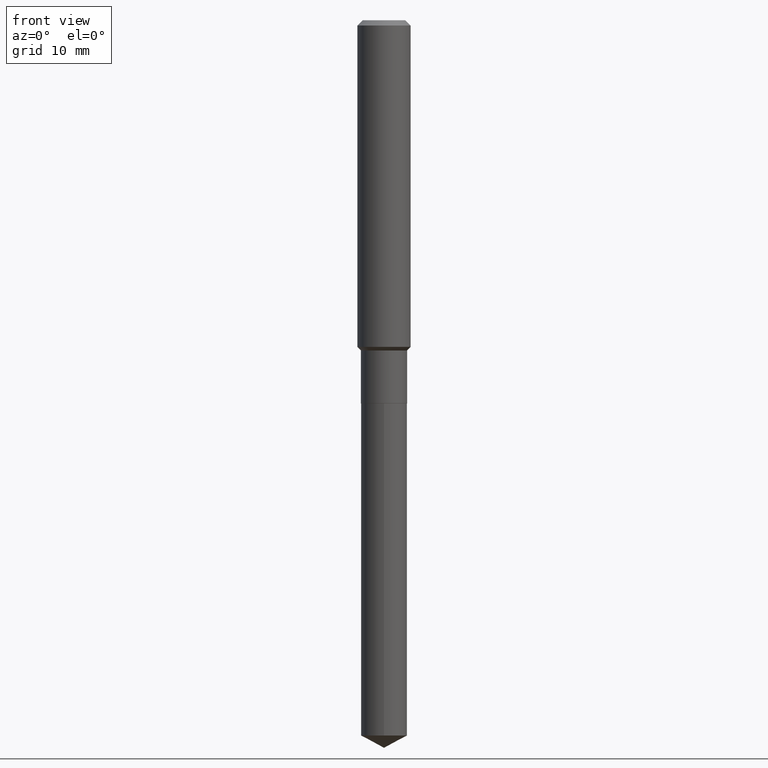
[diagram: clean part render]
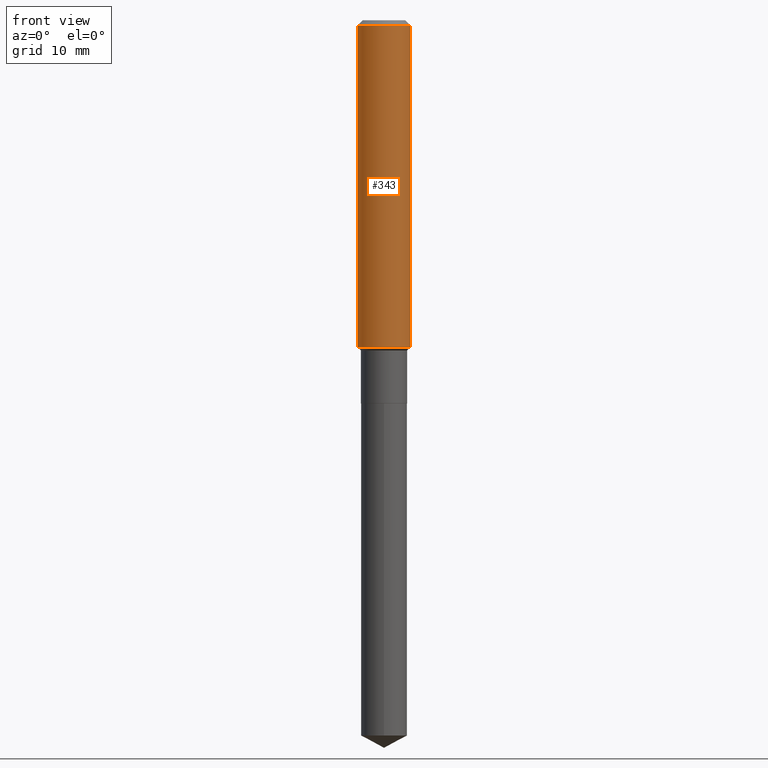
[diagram: same view with one face highlighted and labeled with its STEP entity id]
A machine part, front view. The second image highlights one B-rep face of the part: STEP entity #343.
In plain terms, the highlighted cylindrical surface (edge-blend (fillet) strip) has radius 2.9997 mm, axis along (-0, 0, 1).
Its self-contained STEP definition (entity closure, byte-faithful):
#9 = CARTESIAN_POINT ( 'NONE',  ( 0.1180999999999999966, -9.071566814582237199E-16, -0.02362000000000014088 ) ) ;
#20 = DIRECTION ( 'NONE',  ( 1.000000000000000000, -6.982962677686263555E-15, 0.000000000000000000 ) ) ;
#24 = AXIS2_PLACEMENT_3D ( 'NONE', #25, #388, #20 ) ;
#25 = CARTESIAN_POINT ( 'NONE',  ( 3.544829308005664880E-29, -5.061076774720080972E-15, -1.449549999999999894 ) ) ;
#31 = DIRECTION ( 'NONE',  ( -2.445468806185136597E-29, 3.491481338843145583E-15, 1.000000000000000000 ) ) ;
#50 = EDGE_CURVE ( 'NONE', #344, #430, #53, .T. ) ;
#53 = LINE ( 'NONE', #338, #85 ) ;
#69 = DIRECTION ( 'NONE',  ( 1.000000000000000000, -6.982962677686266711E-15, 4.876176775795936353E-29 ) ) ;
#85 = VECTOR ( 'NONE', #86, 39.37007874015748143 ) ;
#86 = DIRECTION ( 'NONE',  ( -2.445468806185136877E-29, 3.491481338843145188E-15, 1.000000000000000000 ) ) ;
#89 = ORIENTED_EDGE ( 'NONE', *, *, #50, .T. ) ;
#95 = VECTOR ( 'NONE', #348, 39.37007874015748143 ) ;
#109 = ORIENTED_EDGE ( 'NONE', *, *, #216, .T. ) ;
#112 = DIRECTION ( 'NONE',  ( 1.000000000000000000, -6.982962677686266711E-15, 0.000000000000000000 ) ) ;
#114 = CARTESIAN_POINT ( 'NONE',  ( 0.000000000000000000, 0.000000000000000000, 0.000000000000000000 ) ) ;
#120 = ORIENTED_EDGE ( 'NONE', *, *, #398, .F. ) ;
#148 = CARTESIAN_POINT ( 'NONE',  ( -0.1180999999999999966, -1.732621811039098637E-15, -0.02362000000000014088 ) ) ;
#171 = CARTESIAN_POINT ( 'NONE',  ( -0.1181000000000000799, 8.391509709326788873E-16, -5.809262341591047988E-30 ) ) ;
#209 = CIRCLE ( 'NONE', #24, 0.1181000000000001632 ) ;
#216 = EDGE_CURVE ( 'NONE', #235, #344, #209, .T. ) ;
#235 = VERTEX_POINT ( 'NONE', #256 ) ;
#256 = CARTESIAN_POINT ( 'NONE',  ( -0.1181000000000001632, -4.221925803787401987E-15, -1.449549999999999894 ) ) ;
#261 = FACE_OUTER_BOUND ( 'NONE', #369, .T. ) ;
#290 = CARTESIAN_POINT ( 'NONE',  ( 0.1181000000000001632, -5.885764666954829235E-15, -1.449549999999999894 ) ) ;
#300 = VERTEX_POINT ( 'NONE', #148 ) ;
#310 = CIRCLE ( 'NONE', #476, 0.1180999999999999966 ) ;
#323 = EDGE_CURVE ( 'NONE', #300, #430, #310, .T. ) ;
#338 = CARTESIAN_POINT ( 'NONE',  ( 0.1181000000000000799, -8.246878922347486570E-16, 5.758764772215004644E-30 ) ) ;
#343 = ADVANCED_FACE ( 'NONE', ( #261 ), #482, .T. ) ;
#344 = VERTEX_POINT ( 'NONE', #290 ) ;
#348 = DIRECTION ( 'NONE',  ( -2.445468806185136877E-29, 3.491481338843145188E-15, 1.000000000000000000 ) ) ;
#369 = EDGE_LOOP ( 'NONE', ( #120, #109, #89, #489 ) ) ;
#380 = LINE ( 'NONE', #171, #95 ) ;
#388 = DIRECTION ( 'NONE',  ( -2.445468806185136597E-29, 3.491481338843145583E-15, 1.000000000000000000 ) ) ;
#398 = EDGE_CURVE ( 'NONE', #235, #300, #380, .T. ) ;
#403 = CARTESIAN_POINT ( 'NONE',  ( 5.776197320209327532E-31, -8.246878922347559293E-17, -0.02362000000000014088 ) ) ;
#430 = VERTEX_POINT ( 'NONE', #9 ) ;
#447 = DIRECTION ( 'NONE',  ( -2.445468806185136597E-29, 3.491481338843145583E-15, 1.000000000000000000 ) ) ;
#453 = AXIS2_PLACEMENT_3D ( 'NONE', #114, #447, #69 ) ;
#476 = AXIS2_PLACEMENT_3D ( 'NONE', #403, #31, #112 ) ;
#482 = CYLINDRICAL_SURFACE ( 'NONE', #453, 0.1181000000000000799 ) ;
#489 = ORIENTED_EDGE ( 'NONE', *, *, #323, .F. ) ;